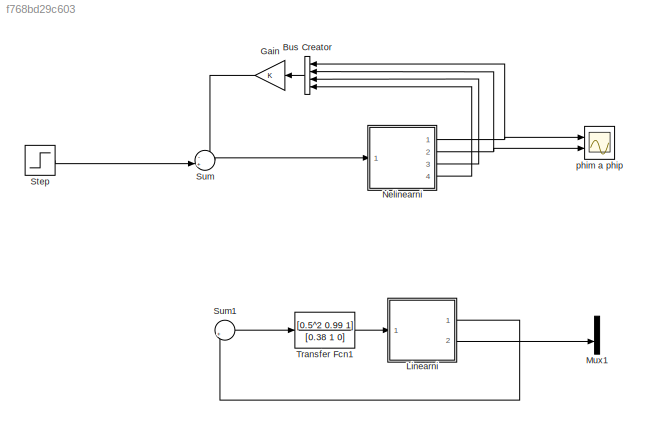
MODEL slx_f768bd29c603
KIND model
BLOCK [BusCreator] Bus Creator
  DisplayOption = bar
  Ports = [4, 1]
BLOCK [Gain] Gain
  Gain = K
  Multiplication = Matrix(K*u)
  OutDataTypeStr = Inherit: Inherit via internal rule
  ParamDataTypeStr = Inherit: Inherit via internal rule
  SaturateOnIntegerOverflow = off
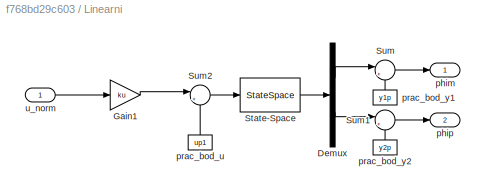
BLOCK [SubSystem] Linearni
  Ports = [1, 2]
  RequestExecContextInheritance = off
BLOCK [Demux] Linearni/Demux
  DisplayOption = bar
  Outputs = 2
  Ports = [1, 2]
BLOCK [Gain] Linearni/Gain1
  Gain = ku
  OutDataTypeStr = Inherit: Inherit via internal rule
  ParamDataTypeStr = Inherit: Inherit via internal rule
  SaturateOnIntegerOverflow = off
BLOCK [StateSpace] Linearni/State-Space
  A = Alin
  B = Blin
  C = Clin
  D = Dlin
  Ports = [1, 1]
  X0 = 0
BLOCK [Sum] Linearni/Sum
  IconShape = round
  InputSameDT = off
  Inputs = |++
  OutDataTypeStr = Inherit: Inherit via internal rule
  Ports = [2, 1]
  SaturateOnIntegerOverflow = off
BLOCK [Sum] Linearni/Sum1
  IconShape = round
  InputSameDT = off
  Inputs = |++
  OutDataTypeStr = Inherit: Inherit via internal rule
  Ports = [2, 1]
  SaturateOnIntegerOverflow = off
BLOCK [Sum] Linearni/Sum2
  IconShape = round
  InputSameDT = off
  Inputs = |+-
  OutDataTypeStr = Inherit: Inherit via internal rule
  Ports = [2, 1]
  SaturateOnIntegerOverflow = off
BLOCK [Outport] Linearni/phim
  IconDisplay = Port number
BLOCK [Outport] Linearni/phip
  IconDisplay = Port number
  Port = 2
BLOCK [Constant] Linearni/prac_bod_u
  Value = up1
BLOCK [Constant] Linearni/prac_bod_y1
  Value = y1p
BLOCK [Constant] Linearni/prac_bod_y2
  Value = y2p
BLOCK [Inport] Linearni/u_norm
  IconDisplay = Port number
BLOCK [Mux] Mux1
  DisplayOption = bar
  Inputs = 2
  Ports = [2, 1]
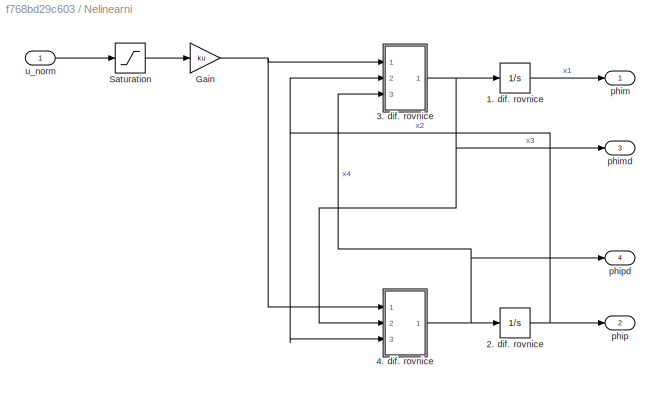
BLOCK [SubSystem] Nelinearni
  Ports = [1, 4]
  RequestExecContextInheritance = off
BLOCK [Integrator] Nelinearni/1. dif. rovnice
  InitialCondition = x1p
  Ports = [1, 1]
BLOCK [Integrator] Nelinearni/2. dif. rovnice
  InitialCondition = x2p
  Ports = [1, 1]
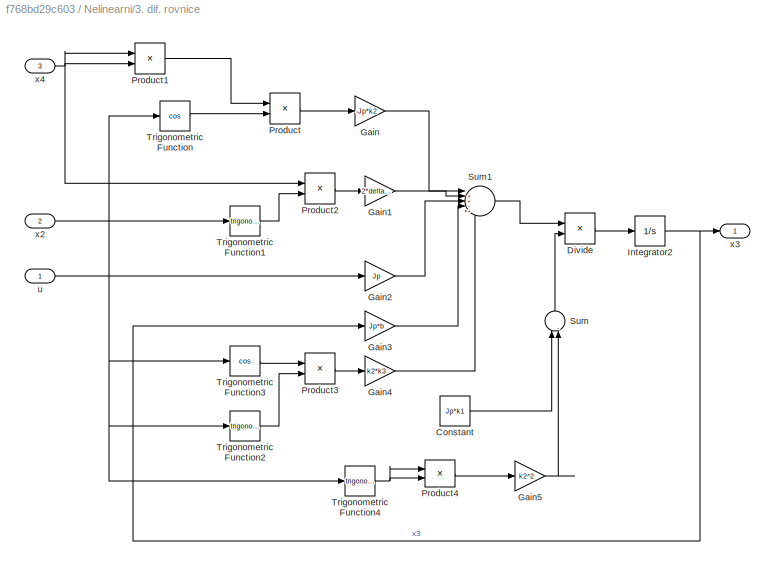
BLOCK [SubSystem] Nelinearni/3. dif. rovnice
  Ports = [3, 1]
  RequestExecContextInheritance = off
BLOCK [Constant] Nelinearni/3. dif. rovnice/Constant
  Value = Jp*k1
BLOCK [Product] Nelinearni/3. dif. rovnice/Divide
  InputSameDT = off
  Inputs = */
  OutDataTypeStr = Inherit: Inherit via internal rule
  Ports = [2, 1]
  RndMeth = Floor
  SaturateOnIntegerOverflow = off
BLOCK [Gain] Nelinearni/3. dif. rovnice/Gain
  Gain = -Jp*k2
  OutDataTypeStr = Inherit: Inherit via internal rule
  ParamDataTypeStr = Inherit: Inherit via internal rule
  SaturateOnIntegerOverflow = off
BLOCK [Gain] Nelinearni/3. dif. rovnice/Gain1
  Gain = 2*delta*k2
  OutDataTypeStr = Inherit: Inherit via internal rule
  ParamDataTypeStr = Inherit: Inherit via internal rule
  SaturateOnIntegerOverflow = off
BLOCK [Gain] Nelinearni/3. dif. rovnice/Gain2
  Gain = Jp
  OutDataTypeStr = Inherit: Inherit via internal rule
  ParamDataTypeStr = Inherit: Inherit via internal rule
  SaturateOnIntegerOverflow = off
BLOCK [Gain] Nelinearni/3. dif. rovnice/Gain3
  Gain = Jp*b
  OutDataTypeStr = Inherit: Inherit via internal rule
  ParamDataTypeStr = Inherit: Inherit via internal rule
  SaturateOnIntegerOverflow = off
BLOCK [Gain] Nelinearni/3. dif. rovnice/Gain4
  Gain = k2*k3
  OutDataTypeStr = Inherit: Inherit via internal rule
  ParamDataTypeStr = Inherit: Inherit via internal rule
  SaturateOnIntegerOverflow = off
BLOCK [Gain] Nelinearni/3. dif. rovnice/Gain5
  Gain = k2^2
  OutDataTypeStr = Inherit: Inherit via internal rule
  ParamDataTypeStr = Inherit: Inherit via internal rule
  SaturateOnIntegerOverflow = off
BLOCK [Integrator] Nelinearni/3. dif. rovnice/Integrator2
  InitialCondition = x3p
  Ports = [1, 1]
BLOCK [Product] Nelinearni/3. dif. rovnice/Product
  InputSameDT = off
  OutDataTypeStr = Inherit: Inherit via internal rule
  Ports = [2, 1]
  RndMeth = Floor
  SaturateOnIntegerOverflow = off
BLOCK [Product] Nelinearni/3. dif. rovnice/Product1
  InputSameDT = off
  OutDataTypeStr = Inherit: Inherit via internal rule
  Ports = [2, 1]
  RndMeth = Floor
  SaturateOnIntegerOverflow = off
BLOCK [Product] Nelinearni/3. dif. rovnice/Product2
  InputSameDT = off
  OutDataTypeStr = Inherit: Inherit via internal rule
  Ports = [2, 1]
  RndMeth = Floor
  SaturateOnIntegerOverflow = off
BLOCK [Product] Nelinearni/3. dif. rovnice/Product3
  InputSameDT = off
  OutDataTypeStr = Inherit: Inherit via internal rule
  Ports = [2, 1]
  RndMeth = Floor
  SaturateOnIntegerOverflow = off
BLOCK [Product] Nelinearni/3. dif. rovnice/Product4
  InputSameDT = off
  OutDataTypeStr = Inherit: Inherit via internal rule
  Ports = [2, 1]
  RndMeth = Floor
  SaturateOnIntegerOverflow = off
BLOCK [Sum] Nelinearni/3. dif. rovnice/Sum
  IconShape = round
  InputSameDT = off
  Inputs = |-+
  OutDataTypeStr = Inherit: Inherit via internal rule
  Ports = [2, 1]
  SaturateOnIntegerOverflow = off
BLOCK [Sum] Nelinearni/3. dif. rovnice/Sum1
  IconShape = round
  InputSameDT = off
  Inputs = |++-++
  OutDataTypeStr = Inherit: Inherit via internal rule
  Ports = [5, 1]
  SaturateOnIntegerOverflow = off
BLOCK [Trigonometry] Nelinearni/3. dif. rovnice/Trigonometric Function
  Operator = cos
  Ports = [1, 1]
BLOCK [Trigonometry] Nelinearni/3. dif. rovnice/Trigonometric Function1
  Ports = [1, 1]
BLOCK [Trigonometry] Nelinearni/3. dif. rovnice/Trigonometric Function2
  Ports = [1, 1]
BLOCK [Trigonometry] Nelinearni/3. dif. rovnice/Trigonometric Function3
  Operator = cos
  Ports = [1, 1]
BLOCK [Trigonometry] Nelinearni/3. dif. rovnice/Trigonometric Function4
  Ports = [1, 1]
BLOCK [Inport] Nelinearni/3. dif. rovnice/u
  IconDisplay = Port number
BLOCK [Inport] Nelinearni/3. dif. rovnice/x2
  IconDisplay = Port number
  Port = 2
BLOCK [Outport] Nelinearni/3. dif. rovnice/x3
  IconDisplay = Port number
BLOCK [Inport] Nelinearni/3. dif. rovnice/x4
  IconDisplay = Port number
  Port = 3
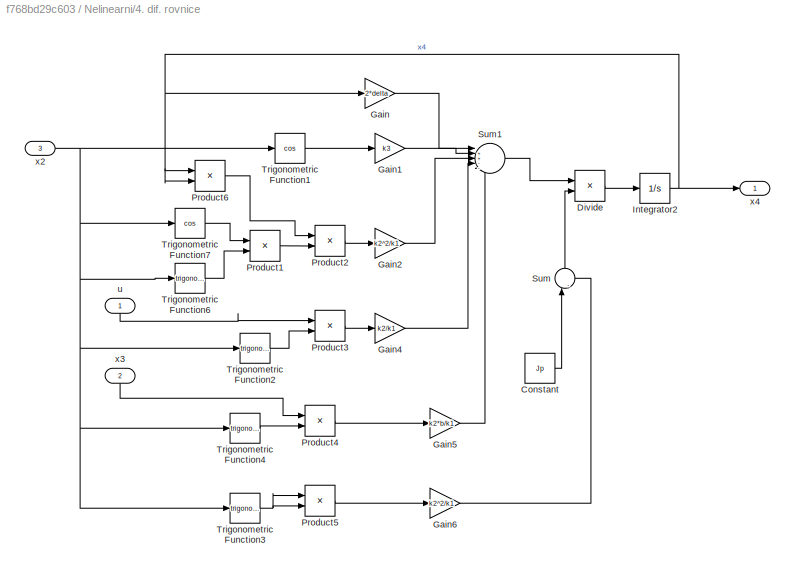
BLOCK [SubSystem] Nelinearni/4. dif. rovnice
  Ports = [3, 1]
  RequestExecContextInheritance = off
BLOCK [Constant] Nelinearni/4. dif. rovnice/Constant
  Value = Jp
BLOCK [Product] Nelinearni/4. dif. rovnice/Divide
  InputSameDT = off
  Inputs = */
  OutDataTypeStr = Inherit: Inherit via internal rule
  Ports = [2, 1]
  RndMeth = Floor
  SaturateOnIntegerOverflow = off
BLOCK [Gain] Nelinearni/4. dif. rovnice/Gain
  Gain = 2*delta
  OutDataTypeStr = Inherit: Inherit via internal rule
  ParamDataTypeStr = Inherit: Inherit via internal rule
  SaturateOnIntegerOverflow = off
BLOCK [Gain] Nelinearni/4. dif. rovnice/Gain1
  Gain = k3
  OutDataTypeStr = Inherit: Inherit via internal rule
  ParamDataTypeStr = Inherit: Inherit via internal rule
  SaturateOnIntegerOverflow = off
BLOCK [Gain] Nelinearni/4. dif. rovnice/Gain2
  Gain = k2^2/k1
  OutDataTypeStr = Inherit: Inherit via internal rule
  ParamDataTypeStr = Inherit: Inherit via internal rule
  SaturateOnIntegerOverflow = off
BLOCK [Gain] Nelinearni/4. dif. rovnice/Gain4
  Gain = k2/k1
  OutDataTypeStr = Inherit: Inherit via internal rule
  ParamDataTypeStr = Inherit: Inherit via internal rule
  SaturateOnIntegerOverflow = off
BLOCK [Gain] Nelinearni/4. dif. rovnice/Gain5
  Gain = k2*b/k1
  OutDataTypeStr = Inherit: Inherit via internal rule
  ParamDataTypeStr = Inherit: Inherit via internal rule
  SaturateOnIntegerOverflow = off
BLOCK [Gain] Nelinearni/4. dif. rovnice/Gain6
  Gain = k2^2/k1
  OutDataTypeStr = Inherit: Inherit via internal rule
  ParamDataTypeStr = Inherit: Inherit via internal rule
  SaturateOnIntegerOverflow = off
BLOCK [Integrator] Nelinearni/4. dif. rovnice/Integrator2
  InitialCondition = x4p
  Ports = [1, 1]
BLOCK [Product] Nelinearni/4. dif. rovnice/Product1
  InputSameDT = off
  OutDataTypeStr = Inherit: Inherit via internal rule
  Ports = [2, 1]
  RndMeth = Floor
  SaturateOnIntegerOverflow = off
BLOCK [Product] Nelinearni/4. dif. rovnice/Product2
  InputSameDT = off
  OutDataTypeStr = Inherit: Inherit via internal rule
  Ports = [2, 1]
  RndMeth = Floor
  SaturateOnIntegerOverflow = off
BLOCK [Product] Nelinearni/4. dif. rovnice/Product3
  InputSameDT = off
  OutDataTypeStr = Inherit: Inherit via internal rule
  Ports = [2, 1]
  RndMeth = Floor
  SaturateOnIntegerOverflow = off
BLOCK [Product] Nelinearni/4. dif. rovnice/Product4
  InputSameDT = off
  OutDataTypeStr = Inherit: Inherit via internal rule
  Ports = [2, 1]
  RndMeth = Floor
  SaturateOnIntegerOverflow = off
BLOCK [Product] Nelinearni/4. dif. rovnice/Product5
  InputSameDT = off
  OutDataTypeStr = Inherit: Inherit via internal rule
  Ports = [2, 1]
  RndMeth = Floor
  SaturateOnIntegerOverflow = off
BLOCK [Product] Nelinearni/4. dif. rovnice/Product6
  InputSameDT = off
  OutDataTypeStr = Inherit: Inherit via internal rule
  Ports = [2, 1]
  RndMeth = Floor
  SaturateOnIntegerOverflow = off
BLOCK [Sum] Nelinearni/4. dif. rovnice/Sum
  IconShape = round
  InputSameDT = off
  Inputs = |-+
  OutDataTypeStr = Inherit: Inherit via internal rule
  Ports = [2, 1]
  SaturateOnIntegerOverflow = off
BLOCK [Sum] Nelinearni/4. dif. rovnice/Sum1
  IconShape = round
  InputSameDT = off
  Inputs = |++--+
  OutDataTypeStr = Inherit: Inherit via internal rule
  Ports = [5, 1]
  SaturateOnIntegerOverflow = off
BLOCK [Trigonometry] Nelinearni/4. dif. rovnice/Trigonometric Function1
  Operator = cos
  Ports = [1, 1]
BLOCK [Trigonometry] Nelinearni/4. dif. rovnice/Trigonometric Function2
  Ports = [1, 1]
BLOCK [Trigonometry] Nelinearni/4. dif. rovnice/Trigonometric Function3
  Ports = [1, 1]
BLOCK [Trigonometry] Nelinearni/4. dif. rovnice/Trigonometric Function4
  Ports = [1, 1]
BLOCK [Trigonometry] Nelinearni/4. dif. rovnice/Trigonometric Function6
  Ports = [1, 1]
BLOCK [Trigonometry] Nelinearni/4. dif. rovnice/Trigonometric Function7
  Operator = cos
  Ports = [1, 1]
BLOCK [Inport] Nelinearni/4. dif. rovnice/u
  IconDisplay = Port number
BLOCK [Inport] Nelinearni/4. dif. rovnice/x2
  IconDisplay = Port number
  Port = 3
BLOCK [Inport] Nelinearni/4. dif. rovnice/x3 
  IconDisplay = Port number
  Port = 2
BLOCK [Outport] Nelinearni/4. dif. rovnice/x4
  IconDisplay = Port number
BLOCK [Gain] Nelinearni/Gain
  Gain = ku
  OutDataTypeStr = Inherit: Inherit via internal rule
  ParamDataTypeStr = Inherit: Inherit via internal rule
  SaturateOnIntegerOverflow = off
BLOCK [Saturate] Nelinearni/Saturation
  InputPortMap = u0
  LowerLimit = -1
  Ports = [1, 1]
  UpperLimit = 1
BLOCK [Outport] Nelinearni/phim
  IconDisplay = Port number
BLOCK [Outport] Nelinearni/phimd
  IconDisplay = Port number
  Port = 3
BLOCK [Outport] Nelinearni/phip
  IconDisplay = Port number
  Port = 2
BLOCK [Outport] Nelinearni/phipd
  IconDisplay = Port number
  Port = 4
BLOCK [Inport] Nelinearni/u_norm
  IconDisplay = Port number
BLOCK [Step] Step
  After = pi/2
  SampleTime = 0
  Time = 0
BLOCK [Sum] Sum
  IconShape = round
  InputSameDT = off
  Inputs = -+|
  OutDataTypeStr = Inherit: Inherit via internal rule
  Ports = [2, 1]
  SaturateOnIntegerOverflow = off
BLOCK [Sum] Sum1
  IconShape = round
  InputSameDT = off
  Inputs = |+-
  OutDataTypeStr = Inherit: Inherit via internal rule
  Ports = [2, 1]
  SaturateOnIntegerOverflow = off
BLOCK [TransferFcn] Transfer Fcn1
  Denominator = [0.38 1 0]
  Numerator = [0.5^2 0.99 1]
BLOCK [Scope] phim a phip
  DataFormat = StructureWithTime
  Floating = off
  LegendLocations = 0.75181     0.87541     0.10446     0.05341\n0.88488      0.4413    0.089147    0.030142
  NumInputPorts = 2
  Ports = [2]
  SampleTime = 0
  SaveName = vystup
  SaveToWorkspace = on
  ShowLegends = on
  YMax = 5~5
  YMin = -5~-5
LINE Bus Creator:1 -> Gain:1
LINE Gain:1 -> Sum:1
LINE Linearni/Demux:1 -> Linearni/Sum:1
LINE Linearni/Demux:2 -> Linearni/Sum1:1
LINE Linearni/Gain1:1 -> Linearni/Sum2:1
LINE Linearni/State-Space:1 -> Linearni/Demux:1
LINE Linearni/Sum1:1 -> Linearni/phip:1
LINE Linearni/Sum2:1 -> Linearni/State-Space:1
LINE Linearni/Sum:1 -> Linearni/phim:1
LINE Linearni/prac_bod_u:1 -> Linearni/Sum2:2
LINE Linearni/prac_bod_y1:1 -> Linearni/Sum:2
LINE Linearni/prac_bod_y2:1 -> Linearni/Sum1:2
LINE Linearni/u_norm:1 -> Linearni/Gain1:1
LINE Linearni:1 -> Sum1:2
LINE Linearni:2 -> Mux1:2
LINE Nelinearni/1. dif. rovnice:1 -> Nelinearni/phim:1
NET Nelinearni/2. dif. rovnice:1 -> Nelinearni/3. dif. rovnice:2, Nelinearni/4. dif. rovnice:3, Nelinearni/phip:1
LINE Nelinearni/3. dif. rovnice/Constant:1 -> Nelinearni/3. dif. rovnice/Sum:1
LINE Nelinearni/3. dif. rovnice/Divide:1 -> Nelinearni/3. dif. rovnice/Integrator2:1
LINE Nelinearni/3. dif. rovnice/Gain1:1 -> Nelinearni/3. dif. rovnice/Sum1:2
LINE Nelinearni/3. dif. rovnice/Gain2:1 -> Nelinearni/3. dif. rovnice/Sum1:3
LINE Nelinearni/3. dif. rovnice/Gain3:1 -> Nelinearni/3. dif. rovnice/Sum1:4
LINE Nelinearni/3. dif. rovnice/Gain4:1 -> Nelinearni/3. dif. rovnice/Sum1:5
LINE Nelinearni/3. dif. rovnice/Gain5:1 -> Nelinearni/3. dif. rovnice/Sum:2
LINE Nelinearni/3. dif. rovnice/Gain:1 -> Nelinearni/3. dif. rovnice/Sum1:1
NET Nelinearni/3. dif. rovnice/Integrator2:1 -> Nelinearni/3. dif. rovnice/Gain3:1, Nelinearni/3. dif. rovnice/x3:1
LINE Nelinearni/3. dif. rovnice/Product1:1 -> Nelinearni/3. dif. rovnice/Product:1
LINE Nelinearni/3. dif. rovnice/Product2:1 -> Nelinearni/3. dif. rovnice/Gain1:1
LINE Nelinearni/3. dif. rovnice/Product3:1 -> Nelinearni/3. dif. rovnice/Gain4:1
LINE Nelinearni/3. dif. rovnice/Product4:1 -> Nelinearni/3. dif. rovnice/Gain5:1
LINE Nelinearni/3. dif. rovnice/Product:1 -> Nelinearni/3. dif. rovnice/Gain:1
LINE Nelinearni/3. dif. rovnice/Sum1:1 -> Nelinearni/3. dif. rovnice/Divide:1
LINE Nelinearni/3. dif. rovnice/Sum:1 -> Nelinearni/3. dif. rovnice/Divide:2
LINE Nelinearni/3. dif. rovnice/Trigonometric Function1:1 -> Nelinearni/3. dif. rovnice/Product2:2
LINE Nelinearni/3. dif. rovnice/Trigonometric Function2:1 -> Nelinearni/3. dif. rovnice/Product3:2
LINE Nelinearni/3. dif. rovnice/Trigonometric Function3:1 -> Nelinearni/3. dif. rovnice/Product3:1
NET Nelinearni/3. dif. rovnice/Trigonometric Function4:1 -> Nelinearni/3. dif. rovnice/Product4:1, Nelinearni/3. dif. rovnice/Product4:2
LINE Nelinearni/3. dif. rovnice/Trigonometric Function:1 -> Nelinearni/3. dif. rovnice/Product:2
LINE Nelinearni/3. dif. rovnice/u:1 -> Nelinearni/3. dif. rovnice/Gain2:1
NET Nelinearni/3. dif. rovnice/x2:1 -> Nelinearni/3. dif. rovnice/Trigonometric Function1:1, Nelinearni/3. dif. rovnice/Trigonometric Function2:1, Nelinearni/3. dif. rovnice/Trigonometric Function3:1, Nelinearni/3. dif. rovnice/Trigonometric Function4:1, Nelinearni/3. dif. rovnice/Trigonometric Function:1
NET Nelinearni/3. dif. rovnice/x4:1 -> Nelinearni/3. dif. rovnice/Product1:1, Nelinearni/3. dif. rovnice/Product1:2, Nelinearni/3. dif. rovnice/Product2:1
NET Nelinearni/3. dif. rovnice:1 -> Nelinearni/1. dif. rovnice:1, Nelinearni/4. dif. rovnice:2, Nelinearni/phimd:1
LINE Nelinearni/4. dif. rovnice/Constant:1 -> Nelinearni/4. dif. rovnice/Sum:1
LINE Nelinearni/4. dif. rovnice/Divide:1 -> Nelinearni/4. dif. rovnice/Integrator2:1
LINE Nelinearni/4. dif. rovnice/Gain1:1 -> Nelinearni/4. dif. rovnice/Sum1:2
LINE Nelinearni/4. dif. rovnice/Gain2:1 -> Nelinearni/4. dif. rovnice/Sum1:3
LINE Nelinearni/4. dif. rovnice/Gain4:1 -> Nelinearni/4. dif. rovnice/Sum1:4
LINE Nelinearni/4. dif. rovnice/Gain5:1 -> Nelinearni/4. dif. rovnice/Sum1:5
LINE Nelinearni/4. dif. rovnice/Gain6:1 -> Nelinearni/4. dif. rovnice/Sum:2
LINE Nelinearni/4. dif. rovnice/Gain:1 -> Nelinearni/4. dif. rovnice/Sum1:1
NET Nelinearni/4. dif. rovnice/Integrator2:1 -> Nelinearni/4. dif. rovnice/Gain:1, Nelinearni/4. dif. rovnice/Product6:1, Nelinearni/4. dif. rovnice/Product6:2, Nelinearni/4. dif. rovnice/x4:1
LINE Nelinearni/4. dif. rovnice/Product1:1 -> Nelinearni/4. dif. rovnice/Product2:2
LINE Nelinearni/4. dif. rovnice/Product2:1 -> Nelinearni/4. dif. rovnice/Gain2:1
LINE Nelinearni/4. dif. rovnice/Product3:1 -> Nelinearni/4. dif. rovnice/Gain4:1
LINE Nelinearni/4. dif. rovnice/Product4:1 -> Nelinearni/4. dif. rovnice/Gain5:1
LINE Nelinearni/4. dif. rovnice/Product5:1 -> Nelinearni/4. dif. rovnice/Gain6:1
LINE Nelinearni/4. dif. rovnice/Product6:1 -> Nelinearni/4. dif. rovnice/Product2:1
LINE Nelinearni/4. dif. rovnice/Sum1:1 -> Nelinearni/4. dif. rovnice/Divide:1
LINE Nelinearni/4. dif. rovnice/Sum:1 -> Nelinearni/4. dif. rovnice/Divide:2
LINE Nelinearni/4. dif. rovnice/Trigonometric Function1:1 -> Nelinearni/4. dif. rovnice/Gain1:1
LINE Nelinearni/4. dif. rovnice/Trigonometric Function2:1 -> Nelinearni/4. dif. rovnice/Product3:2
NET Nelinearni/4. dif. rovnice/Trigonometric Function3:1 -> Nelinearni/4. dif. rovnice/Product5:1, Nelinearni/4. dif. rovnice/Product5:2
LINE Nelinearni/4. dif. rovnice/Trigonometric Function4:1 -> Nelinearni/4. dif. rovnice/Product4:2
LINE Nelinearni/4. dif. rovnice/Trigonometric Function6:1 -> Nelinearni/4. dif. rovnice/Product1:2
LINE Nelinearni/4. dif. rovnice/Trigonometric Function7:1 -> Nelinearni/4. dif. rovnice/Product1:1
LINE Nelinearni/4. dif. rovnice/u:1 -> Nelinearni/4. dif. rovnice/Product3:1
NET Nelinearni/4. dif. rovnice/x2:1 -> Nelinearni/4. dif. rovnice/Trigonometric Function1:1, Nelinearni/4. dif. rovnice/Trigonometric Function2:1, Nelinearni/4. dif. rovnice/Trigonometric Function3:1, Nelinearni/4. dif. rovnice/Trigonometric Function4:1, Nelinearni/4. dif. rovnice/Trigonometric Function6:1, Nelinearni/4. dif. rovnice/Trigonometric Function7:1
LINE Nelinearni/4. dif. rovnice/x3 :1 -> Nelinearni/4. dif. rovnice/Product4:1
NET Nelinearni/4. dif. rovnice:1 -> Nelinearni/2. dif. rovnice:1, Nelinearni/3. dif. rovnice:3, Nelinearni/phipd:1
NET Nelinearni/Gain:1 -> Nelinearni/3. dif. rovnice:1, Nelinearni/4. dif. rovnice:1
LINE Nelinearni/Saturation:1 -> Nelinearni/Gain:1
LINE Nelinearni/u_norm:1 -> Nelinearni/Saturation:1
NET Nelinearni:1 -> Bus Creator:1, phim a phip:1
NET Nelinearni:2 -> Bus Creator:2, phim a phip:2
LINE Nelinearni:3 -> Bus Creator:3
LINE Nelinearni:4 -> Bus Creator:4
LINE Step:1 -> Sum:2
LINE Sum1:1 -> Transfer Fcn1:1
LINE Sum:1 -> Nelinearni:1
LINE Transfer Fcn1:1 -> Linearni:1
note: NET lines group one-source signal fan-out (src -> all destinations, sorted); 1:1 wires keep LINE
